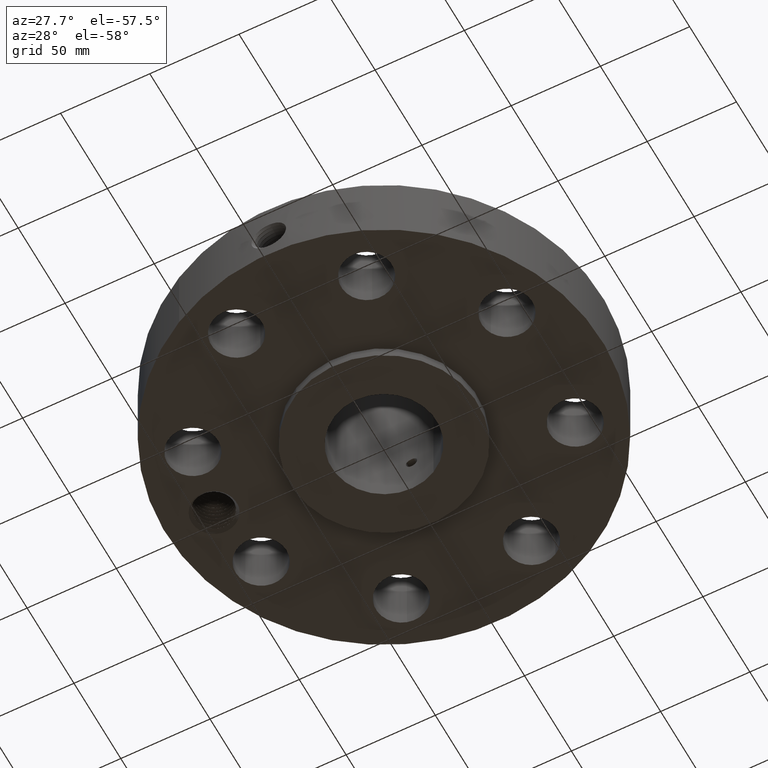
[diagram: clean part render]
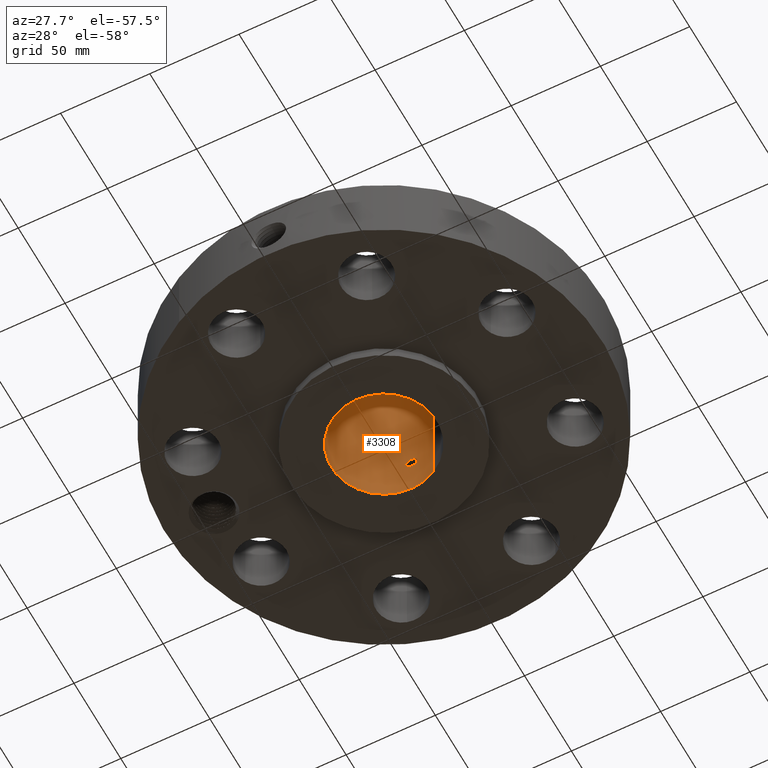
[diagram: same view with one face highlighted and labeled with its STEP entity id]
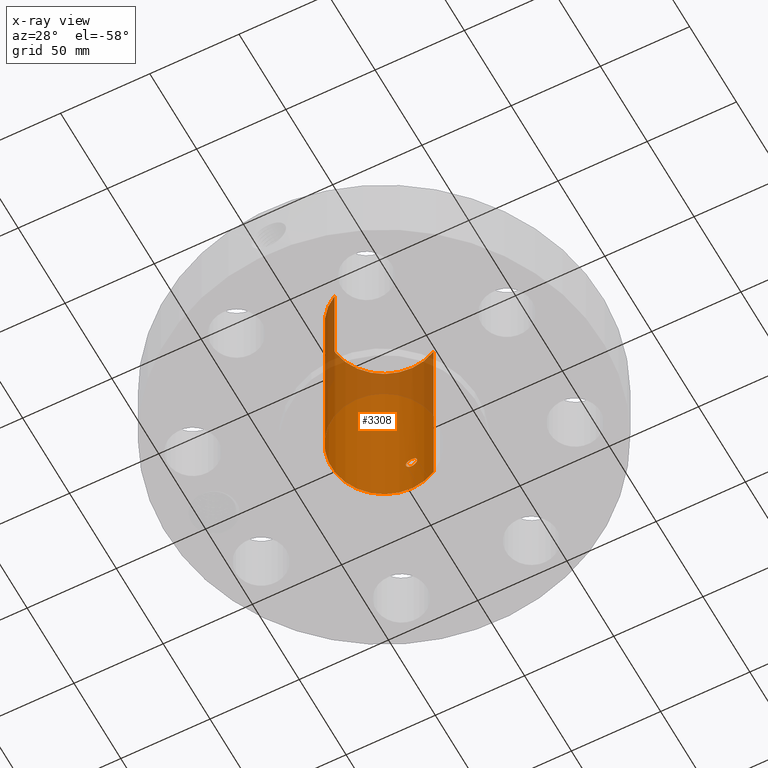
[diagram: x-ray of the same camera — body ghosted, the highlighted face saturated]
A machine part, auxiliary view. The second image highlights one B-rep face of the part: STEP entity #3308.
The next image is the same camera in x-ray: the body ghosted, the highlighted face saturated — about 31% of this face is hidden behind the body in this view.
In plain terms, the highlighted cylindrical surface (partial cylindrical patch) has radius 29.5021 mm, axis along (0, 0, -1).
Its self-contained STEP definition (entity closure, byte-faithful):
#2406=AXIS2_PLACEMENT_3D('Circle Axis2P3D',#2404,#2405,$) ;
#3185=AXIS2_PLACEMENT_3D('Cylinder Axis2P3D',#3182,#3183,#3184) ;
#3257=AXIS2_PLACEMENT_3D('Circle Axis2P3D',#3255,#3256,$) ;
#2399=CARTESIAN_POINT('Vertex',(0.556852763091,1.01931214564,-4.19611851827E-015)) ;
#2401=CARTESIAN_POINT('Vertex',(-0.556852763091,-1.01931214564,-4.19611851827E-015)) ;
#2404=CARTESIAN_POINT('Axis2P3D Location',(0.,0.,0.)) ;
#3182=CARTESIAN_POINT('Axis2P3D Location',(0.,0.,2.18500000001)) ;
#3191=CARTESIAN_POINT('Vertex',(0.556852763091,1.01931214564,4.37000000002)) ;
#3193=CARTESIAN_POINT('Vertex',(-0.556852763091,-1.01931214564,4.37000000002)) ;
#3196=CARTESIAN_POINT('Line Origine',(0.556852763091,1.01931214564,2.18500000001)) ;
#3201=CARTESIAN_POINT('Line Origine',(-0.556852763091,-1.01931214564,2.18500000001)) ;
#3255=CARTESIAN_POINT('Axis2P3D Location',(0.,0.,4.37000000002)) ;
#3267=CARTESIAN_POINT('Control Point',(0.109697820237,1.15630819345,0.99992819233)) ;
#3268=CARTESIAN_POINT('Control Point',(0.103060989339,1.15693782307,1.0120768298)) ;
#3269=CARTESIAN_POINT('Control Point',(0.0947448230855,1.15767872447,1.02330225092)) ;
#3270=CARTESIAN_POINT('Control Point',(0.0849182887578,1.15846635587,1.03329908607)) ;
#3271=CARTESIAN_POINT('Control Point',(0.0516886767853,1.16070631198,1.05881277775)) ;
#3272=CARTESIAN_POINT('Control Point',(0.00989996084173,1.1619951466,1.0693686606)) ;
#3273=CARTESIAN_POINT('Control Point',(-0.019334764021,1.16185763576,1.06829492685)) ;
#3274=CARTESIAN_POINT('Control Point',(-0.0602547442458,1.16026013349,1.05471000983)) ;
#3275=CARTESIAN_POINT('Control Point',(-0.0915436738408,1.15795237813,1.0268140943)) ;
#3276=CARTESIAN_POINT('Control Point',(-0.100627251512,1.15717313002,1.01610023546)) ;
#3277=CARTESIAN_POINT('Control Point',(-0.120582805503,1.15530347133,0.984531428987)) ;
#3278=CARTESIAN_POINT('Control Point',(-0.128082059402,1.15440542413,0.947269804747)) ;
#3279=CARTESIAN_POINT('Control Point',(-0.127187508328,1.15451484049,0.923245169789)) ;
#3280=CARTESIAN_POINT('Control Point',(-0.120786722981,1.15525620016,0.900369907998)) ;
#3281=CARTESIAN_POINT('Control Point',(-0.109697820237,1.15630819345,0.880071807678)) ;
#3282=CARTESIAN_POINT('Vertex',(0.109697820237,1.15630819345,0.99992819233)) ;
#3284=CARTESIAN_POINT('Vertex',(-0.109697820237,1.15630819345,0.880071807678)) ;
#3288=CARTESIAN_POINT('Control Point',(-0.109697820237,1.15630819345,0.880071807678)) ;
#3289=CARTESIAN_POINT('Control Point',(-0.103060989339,1.15693782307,0.867923170208)) ;
#3290=CARTESIAN_POINT('Control Point',(-0.0947448230859,1.15767872447,0.856697749086)) ;
#3291=CARTESIAN_POINT('Control Point',(-0.0849182887577,1.15846635587,0.846700913934)) ;
#3292=CARTESIAN_POINT('Control Point',(-0.0516886767867,1.16070631197,0.82118722226)) ;
#3293=CARTESIAN_POINT('Control Point',(-0.00989996084505,1.1619951466,0.810631339404)) ;
#3294=CARTESIAN_POINT('Control Point',(0.0193347640232,1.16185763576,0.811705073157)) ;
#3295=CARTESIAN_POINT('Control Point',(0.0602547442462,1.16026013349,0.825289990182)) ;
#3296=CARTESIAN_POINT('Control Point',(0.0915436738401,1.15795237813,0.853185905709)) ;
#3297=CARTESIAN_POINT('Control Point',(0.100627251512,1.15717313002,0.863899764544)) ;
#3298=CARTESIAN_POINT('Control Point',(0.120582805502,1.15530347133,0.89546857102)) ;
#3299=CARTESIAN_POINT('Control Point',(0.128082059401,1.15440542413,0.932730195258)) ;
#3300=CARTESIAN_POINT('Control Point',(0.127187508327,1.15451484049,0.95675483022)) ;
#3301=CARTESIAN_POINT('Control Point',(0.12078672298,1.15525620016,0.97963009201)) ;
#3302=CARTESIAN_POINT('Control Point',(0.109697820237,1.15630819345,0.99992819233)) ;
#2405=DIRECTION('Axis2P3D Direction',(0.,0.,-0.0393700787402)) ;
#3183=DIRECTION('Axis2P3D Direction',(0.,0.,-0.0393700787402)) ;
#3184=DIRECTION('Axis2P3D XDirection',(-0.0188750212049,-0.0345504945626,0.)) ;
#3197=DIRECTION('Vector Direction',(0.,0.,-0.0393700787402)) ;
#3202=DIRECTION('Vector Direction',(0.,0.,-0.0393700787402)) ;
#3256=DIRECTION('Axis2P3D Direction',(0.,0.,-0.0393700787402)) ;
#3198=VECTOR('Line Direction',#3197,0.0393700787402) ;
#3203=VECTOR('Line Direction',#3202,0.0393700787402) ;
#3261=ORIENTED_EDGE('',*,*,#3259,.F.) ;
#3262=ORIENTED_EDGE('',*,*,#3205,.T.) ;
#3263=ORIENTED_EDGE('',*,*,#2408,.T.) ;
#3264=ORIENTED_EDGE('',*,*,#3200,.F.) ;
#3305=ORIENTED_EDGE('',*,*,#3286,.F.) ;
#3306=ORIENTED_EDGE('',*,*,#3303,.F.) ;
#3307=FACE_BOUND('',#3304,.T.) ;
#3308=ADVANCED_FACE('PartBody',(#3265,#3307),#3186,.F.) ;
#3266=B_SPLINE_CURVE_WITH_KNOTS('',5,(#3267,#3268,#3269,#3270,#3271,#3272,#3273,#3274,#3275,#3276,#3277,#3278,#3279,#3280,#3281),.UNSPECIFIED.,.F.,.U.,(6,3,3,3,6),(0.,2.48889770993,7.46397860195,9.9577111496,14.1161935743),.UNSPECIFIED.) ;
#3287=B_SPLINE_CURVE_WITH_KNOTS('',5,(#3288,#3289,#3290,#3291,#3292,#3293,#3294,#3295,#3296,#3297,#3298,#3299,#3300,#3301,#3302),.UNSPECIFIED.,.F.,.U.,(6,3,3,3,6),(0.,2.48889770988,7.46397860164,9.95771114926,14.1161935738),.UNSPECIFIED.) ;
#2407=CIRCLE('generated circle',#2406,1.1615) ;
#3258=CIRCLE('generated circle',#3257,1.1615) ;
#3186=CYLINDRICAL_SURFACE('generated cylinder',#3185,1.1615) ;
#2408=EDGE_CURVE('',#2402,#2400,#2407,.T.) ;
#3200=EDGE_CURVE('',#3192,#2400,#3199,.T.) ;
#3205=EDGE_CURVE('',#3194,#2402,#3204,.T.) ;
#3259=EDGE_CURVE('',#3194,#3192,#3258,.T.) ;
#3286=EDGE_CURVE('',#3283,#3285,#3266,.T.) ;
#3303=EDGE_CURVE('',#3285,#3283,#3287,.T.) ;
#3260=EDGE_LOOP('',(#3261,#3262,#3263,#3264)) ;
#3304=EDGE_LOOP('',(#3305,#3306)) ;
#3265=FACE_OUTER_BOUND('',#3260,.T.) ;
#3199=LINE('Line',#3196,#3198) ;
#3204=LINE('Line',#3201,#3203) ;
#2400=VERTEX_POINT('',#2399) ;
#2402=VERTEX_POINT('',#2401) ;
#3192=VERTEX_POINT('',#3191) ;
#3194=VERTEX_POINT('',#3193) ;
#3283=VERTEX_POINT('',#3282) ;
#3285=VERTEX_POINT('',#3284) ;